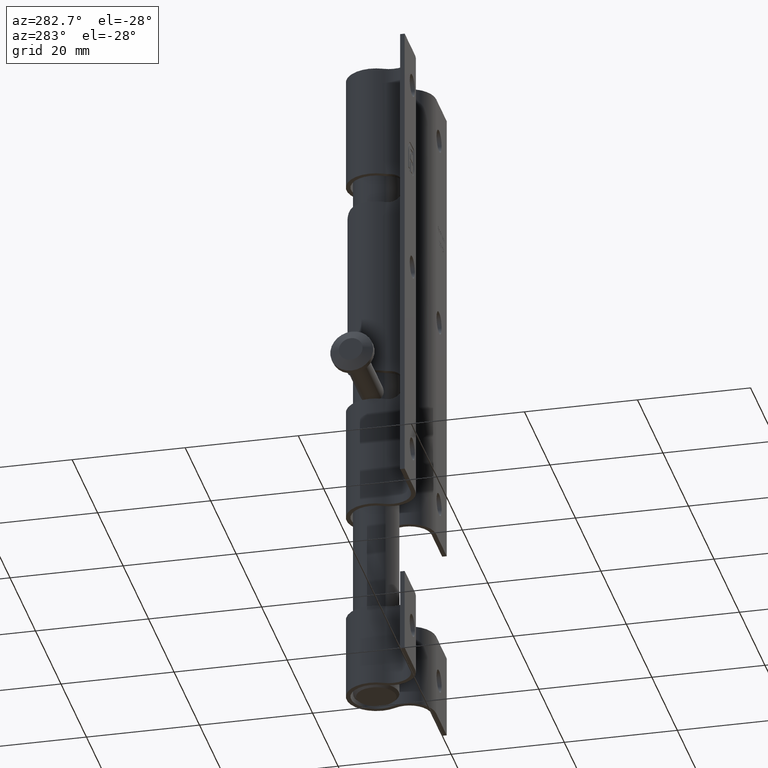
[diagram: clean part render]
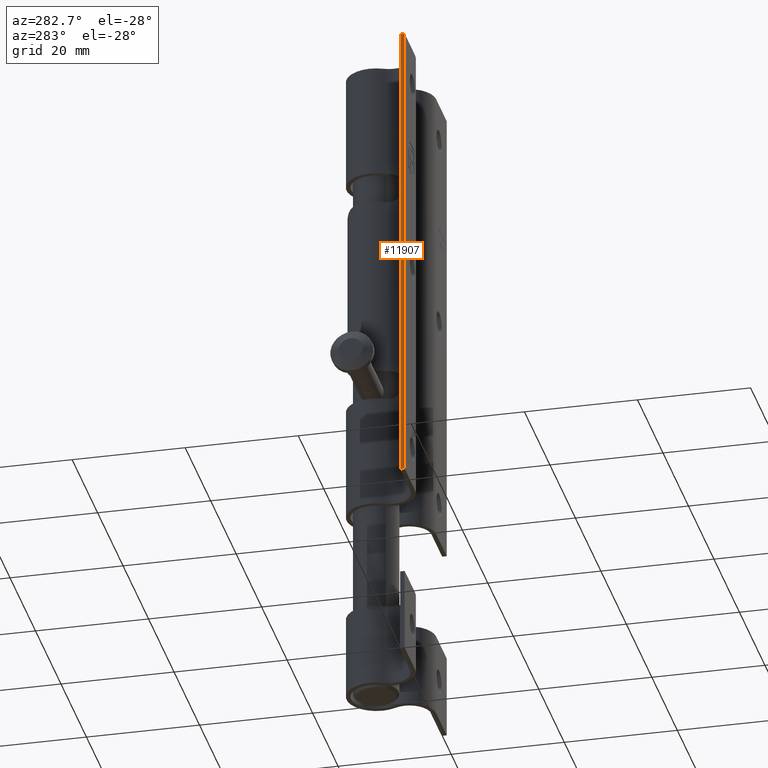
[diagram: same view with one face highlighted and labeled with its STEP entity id]
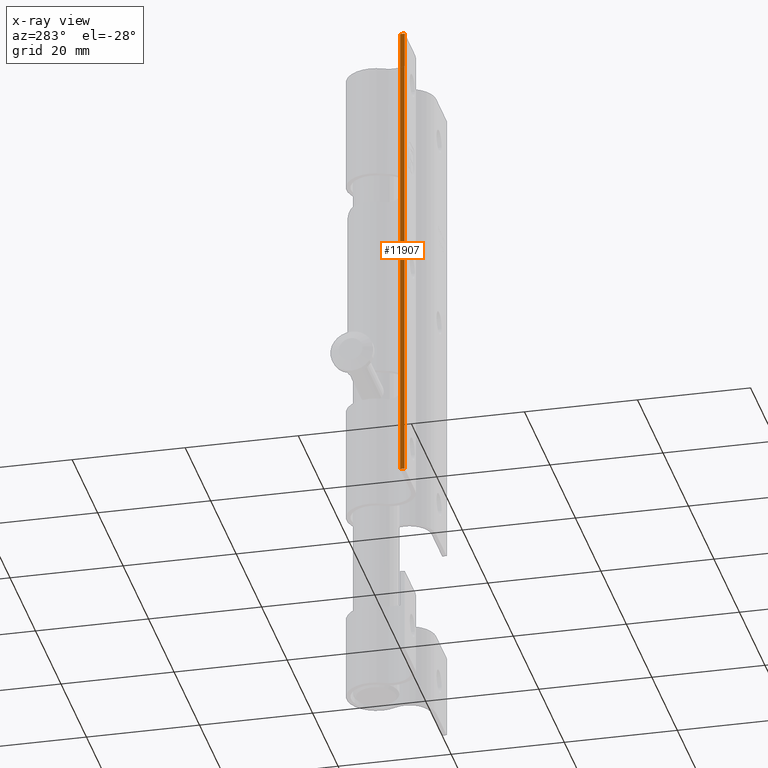
[diagram: x-ray of the same camera — body ghosted, the highlighted face saturated]
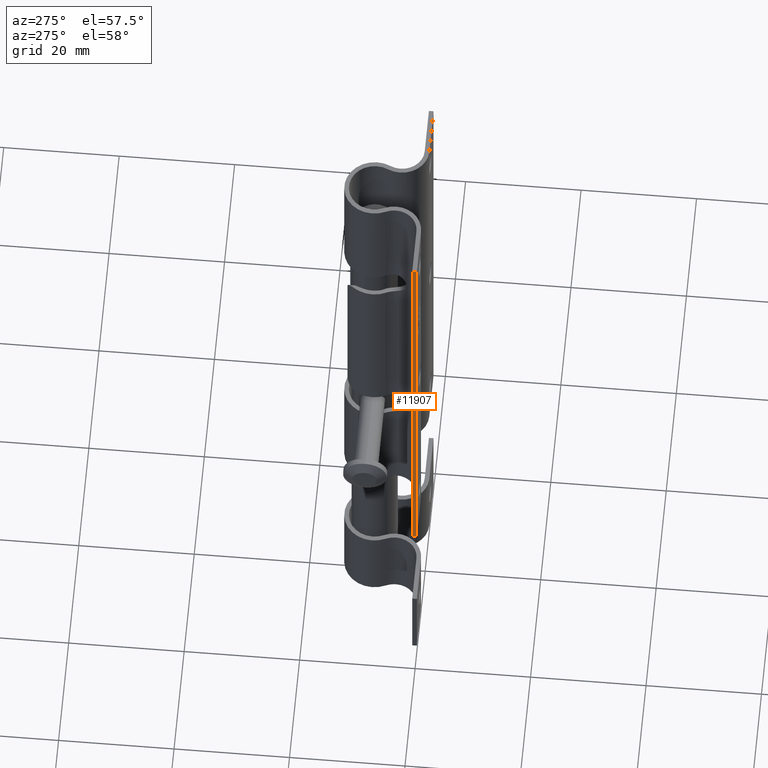
[diagram: same view with one face highlighted and labeled with its STEP entity id]
A machine part, auxiliary view. The second image highlights one B-rep face of the part: STEP entity #11907.
The next image is the same camera in x-ray: the body ghosted, the highlighted face saturated — about 0% of this face is hidden behind the body in this view.
A second angle (auxiliary view) of the same face is appended — the face is thin or edge-on in the first view.
In plain terms, the highlighted planar face has unit normal (1, 0, 0).
Its self-contained STEP definition (entity closure, byte-faithful):
#305 = ORIENTED_EDGE ( 'NONE', *, *, #8234, .T. ) ;
#653 = DIRECTION ( 'NONE',  ( 0.000000000000000000, 0.000000000000000000, -1.000000000000000000 ) ) ;
#740 = CARTESIAN_POINT ( 'NONE',  ( -16.50000000000000000, 0.000000000000000000, 42.50000000000000000 ) ) ;
#1254 = VERTEX_POINT ( 'NONE', #9173 ) ;
#1286 = DIRECTION ( 'NONE',  ( -0.000000000000000000, -0.000000000000000000, -1.000000000000000000 ) ) ;
#1938 = EDGE_CURVE ( 'NONE', #10472, #1254, #13453, .T. ) ;
#2341 = ORIENTED_EDGE ( 'NONE', *, *, #1938, .F. ) ;
#2924 = VERTEX_POINT ( 'NONE', #5228 ) ;
#2965 = EDGE_LOOP ( 'NONE', ( #5612, #7369, #2341, #305 ) ) ;
#3018 = CARTESIAN_POINT ( 'NONE',  ( -16.50000000000000000, 0.000000000000000000, 42.50000000000000000 ) ) ;
#3617 = CARTESIAN_POINT ( 'NONE',  ( -16.50000000000000000, 0.8000000000000000444, 42.50000000000000000 ) ) ;
#3971 = VECTOR ( 'NONE', #9413, 1000.000000000000000 ) ;
#4224 = LINE ( 'NONE', #3018, #4628 ) ;
#4452 = EDGE_CURVE ( 'NONE', #1254, #2924, #4224, .T. ) ;
#4628 = VECTOR ( 'NONE', #7658, 1000.000000000000000 ) ;
#4989 = LINE ( 'NONE', #3617, #14931 ) ;
#5228 = CARTESIAN_POINT ( 'NONE',  ( -16.50000000000000000, 0.000000000000000000, -42.50000000000000000 ) ) ;
#5315 = AXIS2_PLACEMENT_3D ( 'NONE', #5320, #12306, #653 ) ;
#5320 = CARTESIAN_POINT ( 'NONE',  ( -16.50000000000000000, 0.000000000000000000, 42.50000000000000000 ) ) ;
#5612 = ORIENTED_EDGE ( 'NONE', *, *, #13937, .T. ) ;
#5658 = VERTEX_POINT ( 'NONE', #14250 ) ;
#5943 = CARTESIAN_POINT ( 'NONE',  ( -16.50000000000000000, 0.8000000000000000444, 42.50000000000000000 ) ) ;
#6532 = DIRECTION ( 'NONE',  ( -0.000000000000000000, -1.000000000000000000, -0.000000000000000000 ) ) ;
#7369 = ORIENTED_EDGE ( 'NONE', *, *, #4452, .F. ) ;
#7632 = LINE ( 'NONE', #12798, #3971 ) ;
#7658 = DIRECTION ( 'NONE',  ( -0.000000000000000000, -0.000000000000000000, -1.000000000000000000 ) ) ;
#8234 = EDGE_CURVE ( 'NONE', #10472, #5658, #4989, .T. ) ;
#8801 = PLANE ( 'NONE',  #5315 ) ;
#9173 = CARTESIAN_POINT ( 'NONE',  ( -16.50000000000000000, 0.000000000000000000, 42.50000000000000000 ) ) ;
#9413 = DIRECTION ( 'NONE',  ( -0.000000000000000000, -1.000000000000000000, -0.000000000000000000 ) ) ;
#10446 = FACE_OUTER_BOUND ( 'NONE', #2965, .T. ) ;
#10472 = VERTEX_POINT ( 'NONE', #5943 ) ;
#11907 = ADVANCED_FACE ( 'NONE', ( #10446 ), #8801, .F. ) ;
#12306 = DIRECTION ( 'NONE',  ( 1.000000000000000000, 0.000000000000000000, 0.000000000000000000 ) ) ;
#12798 = CARTESIAN_POINT ( 'NONE',  ( -16.50000000000000000, 0.000000000000000000, -42.50000000000000000 ) ) ;
#13453 = LINE ( 'NONE', #740, #14375 ) ;
#13937 = EDGE_CURVE ( 'NONE', #5658, #2924, #7632, .T. ) ;
#14250 = CARTESIAN_POINT ( 'NONE',  ( -16.50000000000000000, 0.8000000000000000444, -42.50000000000000000 ) ) ;
#14375 = VECTOR ( 'NONE', #6532, 1000.000000000000000 ) ;
#14931 = VECTOR ( 'NONE', #1286, 1000.000000000000000 ) ;